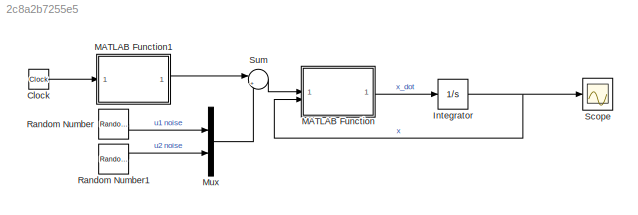
MODEL slx_2c8a2b7255e5
KIND model
CONFIG AbsTol = auto
CONFIG EnableMultiTasking = off
CONFIG FixedStep = 0.0005
CONFIG MaxStep = auto
CONFIG MinStep = auto
CONFIG RelTol = 1e-3
CONFIG SampleTimeConstraint = Unconstrained
CONFIG SolverName = FixedStepAuto
CONFIG StartTime = 0.0
CONFIG StopTime = 50
BLOCK [Clock] Clock
BLOCK [Integrator] Integrator
  InitialCondition = [0;0;0]
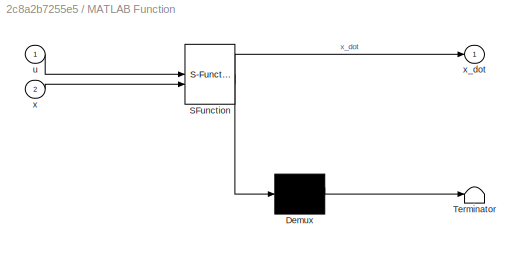
BLOCK [SubSystem] MATLAB Function
  ErrorFcn = Stateflow.Translate.translate
  PermitHierarchicalResolution = ExplicitOnly
  SFBlockType = MATLAB Function
  TreatAsAtomicUnit = on
BLOCK [Demux] MATLAB Function/ Demux 
  Outputs = 1
BLOCK [S-Function] MATLAB Function/ SFunction 
  EnableBusSupport = on
  FunctionName = sf_sfun
  PortCounts = [2 2]
  SFcnIsStateOwnerBlock = off
  SFunctionDeploymentMode = off
  Tag = Stateflow S-Function 2
BLOCK [Terminator] MATLAB Function/ Terminator 
BLOCK [Inport] MATLAB Function/u
BLOCK [Inport] MATLAB Function/x
  Port = 2
BLOCK [Outport] MATLAB Function/x_dot
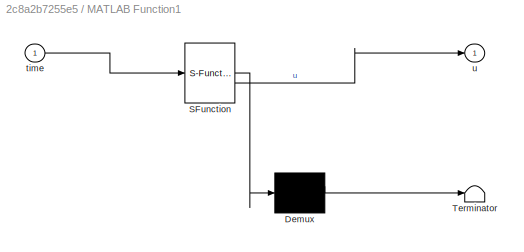
BLOCK [SubSystem] MATLAB Function1
  ErrorFcn = Stateflow.Translate.translate
  PermitHierarchicalResolution = ExplicitOnly
  SFBlockType = MATLAB Function
  TreatAsAtomicUnit = on
BLOCK [Demux] MATLAB Function1/ Demux 
  Outputs = 1
BLOCK [S-Function] MATLAB Function1/ SFunction 
  EnableBusSupport = on
  FunctionName = sf_sfun
  PortCounts = [1 2]
  SFcnIsStateOwnerBlock = off
  SFunctionDeploymentMode = off
  Tag = Stateflow S-Function 1
BLOCK [Terminator] MATLAB Function1/ Terminator 
BLOCK [Inport] MATLAB Function1/time
BLOCK [Outport] MATLAB Function1/u
BLOCK [Mux] Mux
  DisplayOption = bar
  Inputs = 2
BLOCK [RandomNumber] Random Number
  SampleTime = 0.0005
BLOCK [RandomNumber] Random Number1
  SampleTime = 0.0005
  Variance = 0.01
BLOCK [Scope] Scope
  Floating = off
  NumInputPorts = 1
  ScopeSpecificationString = Simulink.scopes.TimeScopeBlockCfg('CurrentConfiguration', extmgr.ConfigurationSet(extmgr.Configuration('Core','General UI',true),extmgr.Configuration('Core','Source UI',true),extmgr.Configuration('Sources','WiredSimulink',true),extmgr.Configuration('Visuals','Time Domain',true,'SerializedDisplays',{struct('MinYLimReal','-0.86675','MaxYLimReal','3.97857','YLabelReal','','MinYLimMag','0.00000','MaxY...<+1472ch>
BLOCK [Sum] Sum
  Inputs = |++
LINE Clock:1 -> MATLAB Function1:1
NET Integrator:1 -> MATLAB Function:2, Scope:1
LINE MATLAB Function1:1 -> Sum:1
LINE MATLAB Function:1 -> Integrator:1
LINE Mux:1 -> Sum:2
LINE Random Number1:1 -> Mux:2
LINE Random Number:1 -> Mux:1
LINE Sum:1 -> MATLAB Function:1
note: NET lines group one-source signal fan-out (src -> all destinations, sorted); 1:1 wires keep LINE
CHART MATLAB Function states=1 transitions=1
  STATE_LABEL 'eML_blk_kernel()'
  STATE_LABEL 'SCRIPT:\nfunction x_dot = robot(u, x)\n    s = u(1);  % 线速度 (m/s)\n    omega = u(2);  % 角速度 (rad/s)\n    theta = x(3);  % 取当前角度\n    \n    % 计算微分方程\n    x_dot = [s * cos(theta);\n             s * sin(theta);\n             omega];\nend\n'
CHART MATLAB Function1 states=1 transitions=1
  STATE_LABEL 'eML_blk_kernel()'
  STATE_LABEL 'SCRIPT:\nfunction u = doControl(time)\n    T = 10;  % time constant\n    V = 0.1; \n    yawrate = 5 * pi / 180;\n    u = [ V * (1 - exp(-time/T)); yawrate * (1 - exp(-time/T)) ];\nend\n'
CHART  states=0 transitions=0
CHART  states=0 transitions=0
